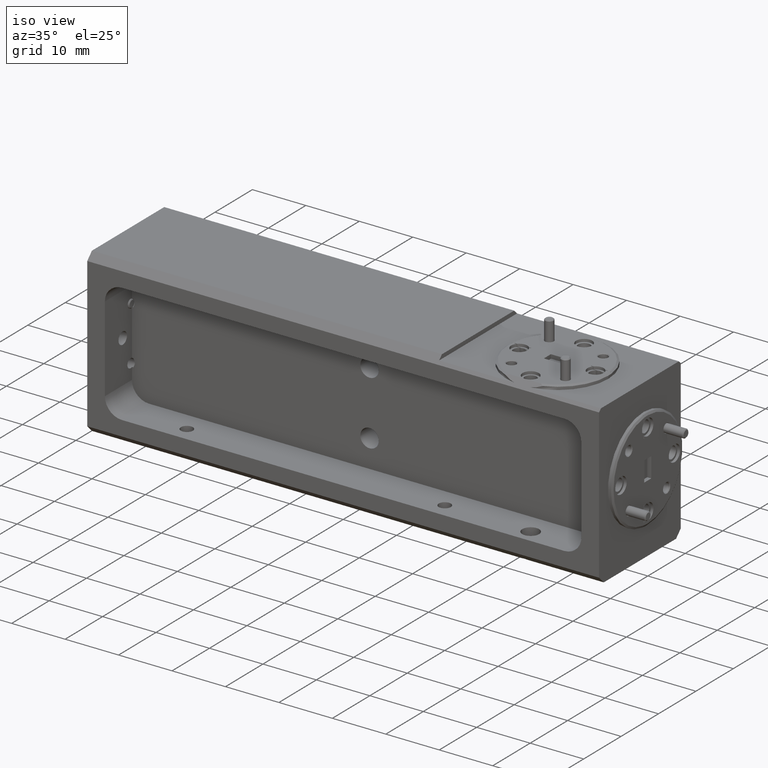
[diagram: clean part render]
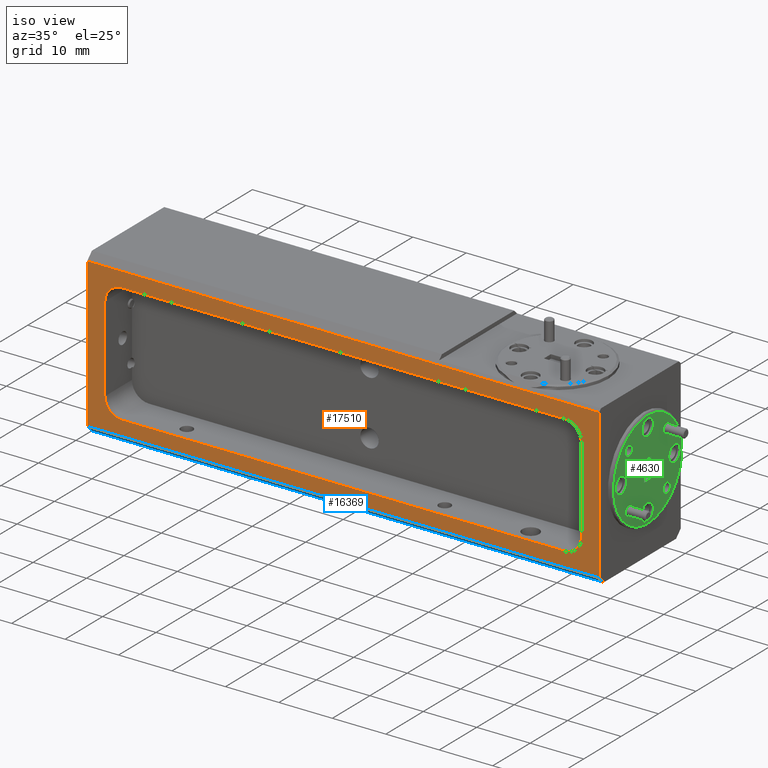
[diagram: same view with three faces highlighted in distinct colors, each labeled with its STEP entity id]
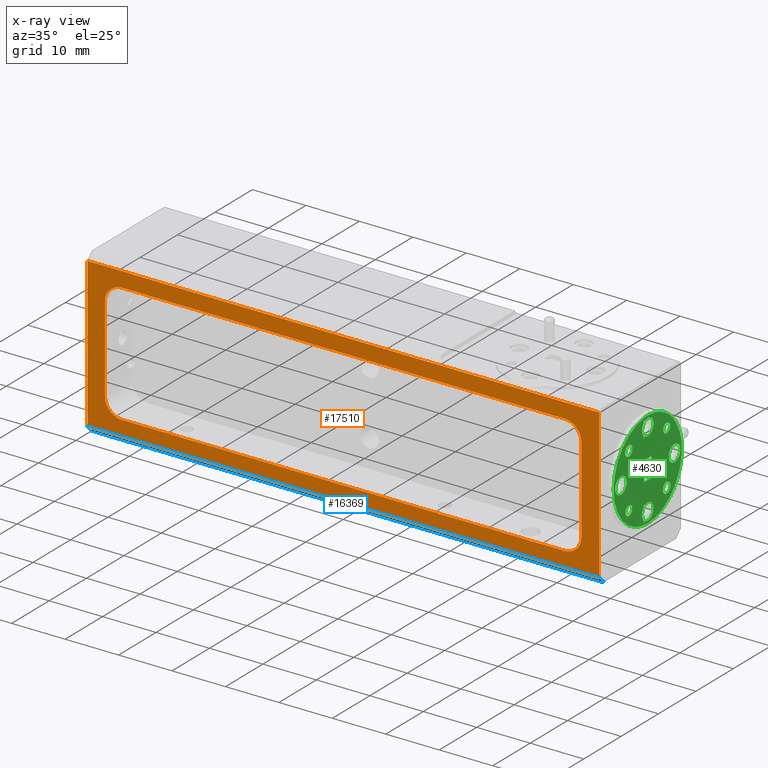
[diagram: x-ray of the same camera — body ghosted, the three highlighted faces saturated]
A machine part, iso view with three faces highlighted in distinct colors.
The next image is the same camera in x-ray (body ghosted, the three faces saturated) — at least one of them is partly hidden behind the body in this view.
Their STEP definitions:

[orange] entity #17510 — the highlighted planar face has unit normal (0, 1, 0).
#13 = CARTESIAN_POINT ( 'NONE',  ( -1.630000000000000338, 0.0000000000000000000, -0.3150000000000001688 ) ) ;
#117 = ORIENTED_EDGE ( 'NONE', *, *, #16021, .T. ) ;
#600 = DIRECTION ( 'NONE',  ( 0.0000000000000000000, -0.0000000000000000000, 1.000000000000000000 ) ) ;
#757 = CARTESIAN_POINT ( 'NONE',  ( 1.630000000000001004, 0.0000000000000000000, 0.3150000000000001688 ) ) ;
#827 = ORIENTED_EDGE ( 'NONE', *, *, #9134, .F. ) ;
#1209 = CIRCLE ( 'NONE', #12504, 0.1250000000000000000 ) ;
#1297 = DIRECTION ( 'NONE',  ( 0.0000000000000000000, 1.000000000000000000, 0.0000000000000000000 ) ) ;
#1350 = ORIENTED_EDGE ( 'NONE', *, *, #7781, .F. ) ;
#1412 = VERTEX_POINT ( 'NONE', #3759 ) ;
#1623 = CARTESIAN_POINT ( 'NONE',  ( 1.884999999999999343, 0.0000000000000000000, 0.5999999999999993117 ) ) ;
#1662 = EDGE_CURVE ( 'NONE', #1412, #18829, #1209, .T. ) ;
#1979 = ORIENTED_EDGE ( 'NONE', *, *, #8696, .T. ) ;
#2440 = CARTESIAN_POINT ( 'NONE',  ( -1.885000000000000453, 0.0000000000000000000, -0.5499999999999996003 ) ) ;
#2533 = CARTESIAN_POINT ( 'NONE',  ( 1.755000000000000782, 0.0000000000000000000, 0.3150000000000001132 ) ) ;
#3133 = LINE ( 'NONE', #1623, #12442 ) ;
#3376 = LINE ( 'NONE', #9351, #18757 ) ;
#3515 = FACE_BOUND ( 'NONE', #13949, .T. ) ;
#3617 = DIRECTION ( 'NONE',  ( 0.0000000000000000000, 1.000000000000000000, 0.0000000000000000000 ) ) ;
#3759 = CARTESIAN_POINT ( 'NONE',  ( 1.755000000000000782, 0.0000000000000000000, -0.3150000000000001688 ) ) ;
#4032 = VECTOR ( 'NONE', #5242, 39.37007874015748143 ) ;
#4731 = VERTEX_POINT ( 'NONE', #18368 ) ;
#5242 = DIRECTION ( 'NONE',  ( -1.000000000000000000, 0.0000000000000000000, 1.248233417470616654E-16 ) ) ;
#5535 = CARTESIAN_POINT ( 'NONE',  ( -1.885000000000000453, 0.0000000000000000000, -0.5999999999999998668 ) ) ;
#5592 = LINE ( 'NONE', #5897, #15548 ) ;
#5897 = CARTESIAN_POINT ( 'NONE',  ( 1.755000000000000782, 0.0000000000000000000, -0.4400000000000001688 ) ) ;
#6010 = EDGE_CURVE ( 'NONE', #8518, #6224, #18048, .T. ) ;
#6105 = EDGE_CURVE ( 'NONE', #8938, #13505, #16646, .T. ) ;
#6110 = ORIENTED_EDGE ( 'NONE', *, *, #9840, .F. ) ;
#6196 = ORIENTED_EDGE ( 'NONE', *, *, #7964, .T. ) ;
#6224 = VERTEX_POINT ( 'NONE', #11084 ) ;
#6254 = DIRECTION ( 'NONE',  ( 0.0000000000000000000, 1.000000000000000000, 0.0000000000000000000 ) ) ;
#6719 = ORIENTED_EDGE ( 'NONE', *, *, #6010, .F. ) ;
#6721 = AXIS2_PLACEMENT_3D ( 'NONE', #15850, #3617, #600 ) ;
#7188 = CARTESIAN_POINT ( 'NONE',  ( 1.755000000000000782, 0.0000000000000000000, 0.4400000000000001688 ) ) ;
#7256 = CARTESIAN_POINT ( 'NONE',  ( 1.630000000000001004, 0.0000000000000000000, -0.4400000000000001688 ) ) ;
#7457 = VERTEX_POINT ( 'NONE', #14024 ) ;
#7463 = DIRECTION ( 'NONE',  ( 0.0000000000000000000, 0.0000000000000000000, 1.000000000000000000 ) ) ;
#7781 = EDGE_CURVE ( 'NONE', #4731, #18829, #3376, .T. ) ;
#7947 = VERTEX_POINT ( 'NONE', #9749 ) ;
#7964 = EDGE_CURVE ( 'NONE', #10710, #17166, #11665, .T. ) ;
#7991 = LINE ( 'NONE', #11217, #4032 ) ;
#8091 = EDGE_CURVE ( 'NONE', #1412, #17166, #5592, .T. ) ;
#8197 = DIRECTION ( 'NONE',  ( 0.0000000000000000000, 0.0000000000000000000, 1.000000000000000000 ) ) ;
#8224 = CARTESIAN_POINT ( 'NONE',  ( -1.755000000000000560, -0.0000000000000000000, -0.4400000000000001688 ) ) ;
#8272 = AXIS2_PLACEMENT_3D ( 'NONE', #18158, #1297, #7463 ) ;
#8518 = VERTEX_POINT ( 'NONE', #2440 ) ;
#8527 = EDGE_LOOP ( 'NONE', ( #6719, #117, #6110, #1979 ) ) ;
#8696 = EDGE_CURVE ( 'NONE', #13230, #6224, #7991, .T. ) ;
#8938 = VERTEX_POINT ( 'NONE', #14608 ) ;
#9134 = EDGE_CURVE ( 'NONE', #8938, #7457, #15896, .T. ) ;
#9351 = CARTESIAN_POINT ( 'NONE',  ( 1.755000000000000782, 0.0000000000000000000, -0.4400000000000001688 ) ) ;
#9532 = ORIENTED_EDGE ( 'NONE', *, *, #9756, .F. ) ;
#9690 = FACE_OUTER_BOUND ( 'NONE', #8527, .T. ) ;
#9749 = CARTESIAN_POINT ( 'NONE',  ( 1.884999999999999343, 9.390727478220904197E-17, -0.5500000000000002665 ) ) ;
#9756 = EDGE_CURVE ( 'NONE', #10710, #13505, #14866, .T. ) ;
#9786 = PLANE ( 'NONE',  #6721 ) ;
#9840 = EDGE_CURVE ( 'NONE', #13230, #7947, #3133, .T. ) ;
#10710 = VERTEX_POINT ( 'NONE', #12287 ) ;
#10795 = DIRECTION ( 'NONE',  ( 1.000000000000000000, 0.0000000000000000000, -1.248233417470616654E-16 ) ) ;
#10852 = VECTOR ( 'NONE', #10795, 39.37007874015748143 ) ;
#11084 = CARTESIAN_POINT ( 'NONE',  ( -1.885000000000000453, 5.122214988120493535E-17, 0.5500000000000003775 ) ) ;
#11217 = CARTESIAN_POINT ( 'NONE',  ( 6.865283796088393324E-17, 0.0000000000000000000, 0.5500000000000000444 ) ) ;
#11556 = DIRECTION ( 'NONE',  ( 0.0000000000000000000, 1.000000000000000000, 0.0000000000000000000 ) ) ;
#11664 = DIRECTION ( 'NONE',  ( 0.0000000000000000000, 0.0000000000000000000, 1.000000000000000000 ) ) ;
#11665 = CIRCLE ( 'NONE', #14252, 0.1250000000000000278 ) ;
#12224 = DIRECTION ( 'NONE',  ( 0.0000000000000000000, 0.0000000000000000000, 1.000000000000000000 ) ) ;
#12287 = CARTESIAN_POINT ( 'NONE',  ( 1.630000000000001004, 0.0000000000000000000, 0.4400000000000001688 ) ) ;
#12442 = VECTOR ( 'NONE', #14253, 39.37007874015748143 ) ;
#12453 = CARTESIAN_POINT ( 'NONE',  ( 1.630000000000001004, 0.0000000000000000000, -0.3150000000000001688 ) ) ;
#12504 = AXIS2_PLACEMENT_3D ( 'NONE', #12453, #17191, #8197 ) ;
#12688 = DIRECTION ( 'NONE',  ( 0.0000000000000000000, 0.0000000000000000000, 1.000000000000000000 ) ) ;
#13230 = VERTEX_POINT ( 'NONE', #17338 ) ;
#13329 = DIRECTION ( 'NONE',  ( 0.0000000000000000000, 0.0000000000000000000, 1.000000000000000000 ) ) ;
#13359 = DIRECTION ( 'NONE',  ( -1.000000000000000000, 0.0000000000000000000, 0.0000000000000000000 ) ) ;
#13505 = VERTEX_POINT ( 'NONE', #18337 ) ;
#13747 = VECTOR ( 'NONE', #14296, 39.37007874015748143 ) ;
#13949 = EDGE_LOOP ( 'NONE', ( #1350, #16080, #827, #18871, #9532, #6196, #18781, #16518 ) ) ;
#14024 = CARTESIAN_POINT ( 'NONE',  ( -1.755000000000000560, 0.0000000000000000000, -0.3150000000000001688 ) ) ;
#14062 = VECTOR ( 'NONE', #13359, 39.37007874015748143 ) ;
#14252 = AXIS2_PLACEMENT_3D ( 'NONE', #757, #11556, #12688 ) ;
#14253 = DIRECTION ( 'NONE',  ( 0.0000000000000000000, 0.0000000000000000000, -1.000000000000000000 ) ) ;
#14296 = DIRECTION ( 'NONE',  ( -0.0000000000000000000, -0.0000000000000000000, -1.000000000000000000 ) ) ;
#14608 = CARTESIAN_POINT ( 'NONE',  ( -1.755000000000000560, 0.0000000000000000000, 0.3150000000000001132 ) ) ;
#14866 = LINE ( 'NONE', #7188, #14062 ) ;
#15339 = LINE ( 'NONE', #18369, #10852 ) ;
#15548 = VECTOR ( 'NONE', #11664, 39.37007874015748143 ) ;
#15850 = CARTESIAN_POINT ( 'NONE',  ( 0.0000000000000000000, 0.0000000000000000000, 0.0000000000000000000 ) ) ;
#15896 = LINE ( 'NONE', #8224, #13747 ) ;
#16021 = EDGE_CURVE ( 'NONE', #8518, #7947, #15339, .T. ) ;
#16080 = ORIENTED_EDGE ( 'NONE', *, *, #17355, .T. ) ;
#16518 = ORIENTED_EDGE ( 'NONE', *, *, #1662, .T. ) ;
#16646 = CIRCLE ( 'NONE', #8272, 0.1249999999999999584 ) ;
#17135 = VECTOR ( 'NONE', #13329, 39.37007874015748143 ) ;
#17166 = VERTEX_POINT ( 'NONE', #2533 ) ;
#17191 = DIRECTION ( 'NONE',  ( 0.0000000000000000000, 1.000000000000000000, 0.0000000000000000000 ) ) ;
#17338 = CARTESIAN_POINT ( 'NONE',  ( 1.884999999999999343, 8.537024980200822558E-18, 0.5499999999999998224 ) ) ;
#17355 = EDGE_CURVE ( 'NONE', #4731, #7457, #17999, .T. ) ;
#17510 = ADVANCED_FACE ( 'NONE', ( #3515, #9690 ), #9786, .F. ) ;
#17683 = AXIS2_PLACEMENT_3D ( 'NONE', #13, #6254, #12224 ) ;
#17999 = CIRCLE ( 'NONE', #17683, 0.1250000000000000000 ) ;
#18048 = LINE ( 'NONE', #5535, #17135 ) ;
#18158 = CARTESIAN_POINT ( 'NONE',  ( -1.630000000000000560, 0.0000000000000000000, 0.3150000000000001132 ) ) ;
#18337 = CARTESIAN_POINT ( 'NONE',  ( -1.630000000000000338, 0.0000000000000000000, 0.4400000000000001688 ) ) ;
#18368 = CARTESIAN_POINT ( 'NONE',  ( -1.630000000000000338, 0.0000000000000000000, -0.4400000000000001688 ) ) ;
#18369 = CARTESIAN_POINT ( 'NONE',  ( -6.865283796088388394E-17, 0.0000000000000000000, -0.5499999999999998224 ) ) ;
#18640 = DIRECTION ( 'NONE',  ( 1.000000000000000000, 0.0000000000000000000, -0.0000000000000000000 ) ) ;
#18757 = VECTOR ( 'NONE', #18640, 39.37007874015748143 ) ;
#18781 = ORIENTED_EDGE ( 'NONE', *, *, #8091, .F. ) ;
#18829 = VERTEX_POINT ( 'NONE', #7256 ) ;
#18871 = ORIENTED_EDGE ( 'NONE', *, *, #6105, .T. ) ;

[blue] entity #16369 — the highlighted planar face has unit normal (0, 0.7071, 0.7071).
#895 = CARTESIAN_POINT ( 'NONE',  ( 1.285108104665468653, 0.04999999999999977379, -0.6000000000000001998 ) ) ;
#1393 = EDGE_LOOP ( 'NONE', ( #1587, #17229, #12120, #19171, #6867, #14679 ) ) ;
#1425 = LINE ( 'NONE', #15358, #2116 ) ;
#1587 = ORIENTED_EDGE ( 'NONE', *, *, #11637, .F. ) ;
#1729 = DIRECTION ( 'NONE',  ( -1.000000000000000000, 0.0000000000000000000, 1.248233417470616654E-16 ) ) ;
#2116 = VECTOR ( 'NONE', #1729, 39.37007874015748143 ) ;
#2279 = VERTEX_POINT ( 'NONE', #18636 ) ;
#2440 = CARTESIAN_POINT ( 'NONE',  ( -1.885000000000000453, 0.0000000000000000000, -0.5499999999999996003 ) ) ;
#2511 = LINE ( 'NONE', #8666, #7111 ) ;
#4479 = LINE ( 'NONE', #12561, #8853 ) ;
#4588 = FACE_OUTER_BOUND ( 'NONE', #1393, .T. ) ;
#6867 = ORIENTED_EDGE ( 'NONE', *, *, #14011, .T. ) ;
#7111 = VECTOR ( 'NONE', #7159, 39.37007874015748143 ) ;
#7159 = DIRECTION ( 'NONE',  ( -0.0000000000000000000, -0.7071067811865443531, 0.7071067811865506814 ) ) ;
#7947 = VERTEX_POINT ( 'NONE', #9749 ) ;
#7951 = CARTESIAN_POINT ( 'NONE',  ( -1.885000000000000453, 0.04999999999999974604, -0.5999999999999998668 ) ) ;
#8142 = DIRECTION ( 'NONE',  ( -1.000000000000000000, 0.0000000000000000000, 1.248233417470616654E-16 ) ) ;
#8257 = CARTESIAN_POINT ( 'NONE',  ( 1.311868748388995476, 0.04562776243093956408, -0.5956277624309399554 ) ) ;
#8518 = VERTEX_POINT ( 'NONE', #2440 ) ;
#8592 = EDGE_CURVE ( 'NONE', #8810, #2279, #1425, .T. ) ;
#8666 = CARTESIAN_POINT ( 'NONE',  ( 1.884999999999999343, 0.04999999999999973910, -0.6000000000000001998 ) ) ;
#8810 = VERTEX_POINT ( 'NONE', #17271 ) ;
#8853 = VECTOR ( 'NONE', #9219, 39.37007874015748143 ) ;
#9219 = DIRECTION ( 'NONE',  ( -0.0000000000000000000, 0.7071067811865443531, -0.7071067811865506814 ) ) ;
#9749 = CARTESIAN_POINT ( 'NONE',  ( 1.884999999999999343, 9.390727478220904197E-17, -0.5500000000000002665 ) ) ;
#10656 = VECTOR ( 'NONE', #8142, 39.37007874015748143 ) ;
#10795 = DIRECTION ( 'NONE',  ( 1.000000000000000000, 0.0000000000000000000, -1.248233417470616654E-16 ) ) ;
#10852 = VECTOR ( 'NONE', #10795, 39.37007874015748143 ) ;
#11161 = LINE ( 'NONE', #19964, #10656 ) ;
#11193 = CARTESIAN_POINT ( 'NONE',  ( 1.298131251611004400, 0.04562776243093956408, -0.5956277624309399554 ) ) ;
#11637 = EDGE_CURVE ( 'NONE', #2279, #18709, #16802, .T. ) ;
#12120 = ORIENTED_EDGE ( 'NONE', *, *, #13040, .T. ) ;
#12466 = DIRECTION ( 'NONE',  ( -1.000000000000000000, 0.0000000000000000000, 1.248233417470616654E-16 ) ) ;
#12561 = CARTESIAN_POINT ( 'NONE',  ( -1.885000000000000453, 0.04999999999999998196, -0.5999999999999999778 ) ) ;
#12672 = CARTESIAN_POINT ( 'NONE',  ( 1.914999999999999369, 0.04999999999999973910, -0.6000000000000001998 ) ) ;
#13040 = EDGE_CURVE ( 'NONE', #8810, #7947, #2511, .T. ) ;
#14011 = EDGE_CURVE ( 'NONE', #8518, #17737, #4479, .T. ) ;
#14679 = ORIENTED_EDGE ( 'NONE', *, *, #14801, .F. ) ;
#14801 = EDGE_CURVE ( 'NONE', #18709, #17737, #11161, .T. ) ;
#15339 = LINE ( 'NONE', #18369, #10852 ) ;
#15358 = CARTESIAN_POINT ( 'NONE',  ( 1.914999999999999369, 0.04999999999999973910, -0.6000000000000001998 ) ) ;
#15928 = CARTESIAN_POINT ( 'NONE',  ( 1.324891895334531222, 0.04999999999999973910, -0.6000000000000001998 ) ) ;
#16021 = EDGE_CURVE ( 'NONE', #8518, #7947, #15339, .T. ) ;
#16369 = ADVANCED_FACE ( 'NONE', ( #4588 ), #18721, .F. ) ;
#16802 =( BOUNDED_CURVE ( )  B_SPLINE_CURVE ( 3, ( #15928, #8257, #11193, #17349 ),
 .UNSPECIFIED., .F., .F. ) 
 B_SPLINE_CURVE_WITH_KNOTS ( ( 4, 4 ),
 ( 2.817688277784851092, 3.465497029394735140 ),
 .UNSPECIFIED. ) 
 CURVE ( )  GEOMETRIC_REPRESENTATION_ITEM ( )  RATIONAL_B_SPLINE_CURVE ( ( 1.000000000000000000, 0.9653333333333378175, 0.9653333333333378175, 1.000000000000000000 ) ) 
 REPRESENTATION_ITEM ( '' )  );
#17229 = ORIENTED_EDGE ( 'NONE', *, *, #8592, .F. ) ;
#17271 = CARTESIAN_POINT ( 'NONE',  ( 1.884999999999999343, 0.05000000000000013461, -0.6000000000000005329 ) ) ;
#17308 = AXIS2_PLACEMENT_3D ( 'NONE', #12672, #18823, #12466 ) ;
#17349 = CARTESIAN_POINT ( 'NONE',  ( 1.285108104665468653, 0.04999999999999977379, -0.6000000000000001998 ) ) ;
#17737 = VERTEX_POINT ( 'NONE', #7951 ) ;
#18369 = CARTESIAN_POINT ( 'NONE',  ( -6.865283796088388394E-17, 0.0000000000000000000, -0.5499999999999998224 ) ) ;
#18636 = CARTESIAN_POINT ( 'NONE',  ( 1.324891895334531222, 0.04999999999999973910, -0.6000000000000001998 ) ) ;
#18709 = VERTEX_POINT ( 'NONE', #895 ) ;
#18721 = PLANE ( 'NONE',  #17308 ) ;
#18823 = DIRECTION ( 'NONE',  ( 8.826343139971278551E-17, 0.7071067811865506814, 0.7071067811865443531 ) ) ;
#19171 = ORIENTED_EDGE ( 'NONE', *, *, #16021, .F. ) ;
#19964 = CARTESIAN_POINT ( 'NONE',  ( 1.914999999999999369, 0.04999999999999973910, -0.6000000000000001998 ) ) ;

[green] entity #4630 — the highlighted planar face has unit normal (-1, 0, 0).
#31 = ORIENTED_EDGE ( 'NONE', *, *, #5197, .F. ) ;
#39 = VERTEX_POINT ( 'NONE', #3777 ) ;
#63 = EDGE_CURVE ( 'NONE', #14581, #17776, #1347, .T. ) ;
#123 = ORIENTED_EDGE ( 'NONE', *, *, #13187, .F. ) ;
#139 = CARTESIAN_POINT ( 'NONE',  ( 1.914999999999999369, 0.4325000000000001066, -0.07400000000000001021 ) ) ;
#170 = LINE ( 'NONE', #12595, #4122 ) ;
#205 = ORIENTED_EDGE ( 'NONE', *, *, #15525, .T. ) ;
#278 = EDGE_CURVE ( 'NONE', #14092, #14114, #1659, .T. ) ;
#340 = AXIS2_PLACEMENT_3D ( 'NONE', #10606, #7569, #6044 ) ;
#358 = DIRECTION ( 'NONE',  ( 0.0000000000000000000, 0.0000000000000000000, -1.000000000000000000 ) ) ;
#376 = VERTEX_POINT ( 'NONE', #6589 ) ;
#520 = CARTESIAN_POINT ( 'NONE',  ( 1.914999999999999369, 0.4325000000000000511, -0.2340165372855219639 ) ) ;
#613 = CARTESIAN_POINT ( 'NONE',  ( 1.914999999999999369, 0.4274999999999999911, 0.5999999999999996447 ) ) ;
#623 = CARTESIAN_POINT ( 'NONE',  ( 1.915000000000000258, 0.4274999999999999911, -0.2212500000000001688 ) ) ;
#625 = CIRCLE ( 'NONE', #11919, 0.05999999999999997696 ) ;
#643 = ORIENTED_EDGE ( 'NONE', *, *, #13526, .F. ) ;
#727 = LINE ( 'NONE', #10212, #17454 ) ;
#730 = CARTESIAN_POINT ( 'NONE',  ( 1.914999999999999369, 0.4325000000000000511, 0.3580935631926372431 ) ) ;
#764 = ORIENTED_EDGE ( 'NONE', *, *, #19812, .F. ) ;
#767 = CARTESIAN_POINT ( 'NONE',  ( 1.914999999999999369, 0.4325000000000000511, 0.3412500000000001643 ) ) ;
#774 = CARTESIAN_POINT ( 'NONE',  ( 1.914999999999999369, 0.2706262177912836520, 0.1988737822087165430 ) ) ;
#799 = DIRECTION ( 'NONE',  ( -1.000000000000000000, 0.0000000000000000000, 0.0000000000000000000 ) ) ;
#866 = LINE ( 'NONE', #19360, #3564 ) ;
#896 = AXIS2_PLACEMENT_3D ( 'NONE', #8135, #9650, #358 ) ;
#909 = VERTEX_POINT ( 'NONE', #1319 ) ;
#974 = VERTEX_POINT ( 'NONE', #13844 ) ;
#1160 = CARTESIAN_POINT ( 'NONE',  ( 1.914999999999999369, 0.4274999999999999911, 0.2384014294287430946 ) ) ;
#1175 = DIRECTION ( 'NONE',  ( -0.0000000000000000000, 1.000000000000000000, -0.0000000000000000000 ) ) ;
#1187 = VERTEX_POINT ( 'NONE', #1160 ) ;
#1188 = CIRCLE ( 'NONE', #2804, 0.03474999999999994760 ) ;
#1280 = CARTESIAN_POINT ( 'NONE',  ( 1.914999999999999369, 0.5065000000000000613, -0.07400000000000001021 ) ) ;
#1307 = EDGE_CURVE ( 'NONE', #11933, #11652, #18003, .T. ) ;
#1319 = CARTESIAN_POINT ( 'NONE',  ( 1.914999999999999369, 0.4274999999999999911, 0.3575416059705489591 ) ) ;
#1347 = CIRCLE ( 'NONE', #3912, 0.03475000000000001699 ) ;
#1470 = DIRECTION ( 'NONE',  ( 0.0000000000000000000, 0.0000000000000000000, -1.000000000000000000 ) ) ;
#1580 = VERTEX_POINT ( 'NONE', #3639 ) ;
#1604 = VERTEX_POINT ( 'NONE', #18907 ) ;
#1659 = CIRCLE ( 'NONE', #10690, 0.3599999999999988765 ) ;
#1775 = ORIENTED_EDGE ( 'NONE', *, *, #15599, .F. ) ;
#1778 = CIRCLE ( 'NONE', #4028, 0.05999999999999999778 ) ;
#1790 = ORIENTED_EDGE ( 'NONE', *, *, #2315, .F. ) ;
#1842 = VERTEX_POINT ( 'NONE', #18489 ) ;
#1861 = EDGE_CURVE ( 'NONE', #2503, #1604, #8402, .T. ) ;
#1872 = DIRECTION ( 'NONE',  ( 1.000000000000000000, -0.0000000000000000000, -0.0000000000000000000 ) ) ;
#2001 = LINE ( 'NONE', #15832, #5782 ) ;
#2028 = DIRECTION ( 'NONE',  ( 0.0000000000000000000, 0.0000000000000000000, -1.000000000000000000 ) ) ;
#2164 = EDGE_CURVE ( 'NONE', #1604, #39, #13262, .T. ) ;
#2172 = VECTOR ( 'NONE', #3736, 39.37007874015748143 ) ;
#2229 = EDGE_CURVE ( 'NONE', #14114, #12073, #866, .T. ) ;
#2236 = CARTESIAN_POINT ( 'NONE',  ( 1.914999999999999369, 0.7507500000000001394, 0.06000000000000005329 ) ) ;
#2272 = VERTEX_POINT ( 'NONE', #16824 ) ;
#2294 = LINE ( 'NONE', #9867, #16436 ) ;
#2297 = CARTESIAN_POINT ( 'NONE',  ( 1.914999999999999369, 0.4325000000000000511, 0.2212500000000003353 ) ) ;
#2315 = EDGE_CURVE ( 'NONE', #9734, #13354, #13703, .T. ) ;
#2363 = CARTESIAN_POINT ( 'NONE',  ( 1.914999999999999369, 0.4695000000000001394, 5.122214988120493535E-17 ) ) ;
#2387 = LINE ( 'NONE', #4305, #5628 ) ;
#2390 = EDGE_CURVE ( 'NONE', #17776, #14581, #8420, .T. ) ;
#2448 = ORIENTED_EDGE ( 'NONE', *, *, #6174, .F. ) ;
#2470 = EDGE_CURVE ( 'NONE', #8856, #5098, #12238, .T. ) ;
#2503 = VERTEX_POINT ( 'NONE', #15800 ) ;
#2516 = ORIENTED_EDGE ( 'NONE', *, *, #18898, .F. ) ;
#2580 = CARTESIAN_POINT ( 'NONE',  ( 1.914999999999999369, 0.4695000000000001394, 0.2812500000000001110 ) ) ;
#2638 = DIRECTION ( 'NONE',  ( 1.000000000000000000, -0.0000000000000000000, -0.0000000000000000000 ) ) ;
#2684 = DIRECTION ( 'NONE',  ( 1.000000000000000000, 0.0000000000000000000, 0.0000000000000000000 ) ) ;
#2774 = CIRCLE ( 'NONE', #8904, 0.03850000000000001338 ) ;
#2784 = CARTESIAN_POINT ( 'NONE',  ( 1.914999999999999369, 0.4695000000000000839, -0.2812500000000000555 ) ) ;
#2785 = CARTESIAN_POINT ( 'NONE',  ( 1.914999999999999369, 0.4695000000000001394, 5.122214988120493535E-17 ) ) ;
#2803 = EDGE_LOOP ( 'NONE', ( #6225, #7601, #7399, #8816 ) ) ;
#2804 = AXIS2_PLACEMENT_3D ( 'NONE', #17544, #13012, #17640 ) ;
#2884 = CARTESIAN_POINT ( 'NONE',  ( 1.914999999999999369, 0.4274999999999999911, 0.5999999999999996447 ) ) ;
#2991 = CARTESIAN_POINT ( 'NONE',  ( 1.915000000000000258, 0.4274999999999999911, -0.3412499999999999978 ) ) ;
#2999 = ORIENTED_EDGE ( 'NONE', *, *, #14455, .F. ) ;
#3042 = DIRECTION ( 'NONE',  ( 0.0000000000000000000, 0.0000000000000000000, -1.000000000000000000 ) ) ;
#3061 = VERTEX_POINT ( 'NONE', #18586 ) ;
#3103 = LINE ( 'NONE', #7658, #17935 ) ;
#3105 = CARTESIAN_POINT ( 'NONE',  ( 1.914999999999999369, 0.7507500000000001394, 5.122214988120493535E-17 ) ) ;
#3117 = VERTEX_POINT ( 'NONE', #9192 ) ;
#3247 = AXIS2_PLACEMENT_3D ( 'NONE', #2784, #5711, #5816 ) ;
#3399 = EDGE_CURVE ( 'NONE', #2503, #13354, #7259, .T. ) ;
#3480 = CARTESIAN_POINT ( 'NONE',  ( 1.914999999999999369, 0.4325000000000000511, 0.3570000000000012608 ) ) ;
#3536 = VECTOR ( 'NONE', #15549, 39.37007874015748143 ) ;
#3564 = VECTOR ( 'NONE', #5510, 39.37007874015748143 ) ;
#3572 = CARTESIAN_POINT ( 'NONE',  ( 1.914999999999999369, 0.2706262177912836520, -0.1988737822087165430 ) ) ;
#3574 = ORIENTED_EDGE ( 'NONE', *, *, #278, .T. ) ;
#3639 = CARTESIAN_POINT ( 'NONE',  ( 1.914999999999999369, 0.4325000000000000511, 0.3284834627144782027 ) ) ;
#3707 = VERTEX_POINT ( 'NONE', #6537 ) ;
#3712 = CARTESIAN_POINT ( 'NONE',  ( 1.914999999999999369, 0.1882500000000000562, 5.122214988120493535E-17 ) ) ;
#3736 = DIRECTION ( 'NONE',  ( 0.0000000000000000000, 0.0000000000000000000, -1.000000000000000000 ) ) ;
#3777 = CARTESIAN_POINT ( 'NONE',  ( 1.914999999999999369, 0.4695000000000000839, -0.2212500000000000577 ) ) ;
#3780 = EDGE_CURVE ( 'NONE', #3117, #6338, #2294, .T. ) ;
#3781 = ORIENTED_EDGE ( 'NONE', *, *, #8102, .F. ) ;
#3787 = DIRECTION ( 'NONE',  ( 1.000000000000000000, 0.0000000000000000000, 0.0000000000000000000 ) ) ;
#3803 = ORIENTED_EDGE ( 'NONE', *, *, #5676, .T. ) ;
#3805 = ORIENTED_EDGE ( 'NONE', *, *, #8098, .F. ) ;
#3821 = CARTESIAN_POINT ( 'NONE',  ( 1.914999999999999369, 0.4695000000000001394, 0.2812500000000001110 ) ) ;
#3904 = CARTESIAN_POINT ( 'NONE',  ( 1.914999999999999369, 0.4695000000000001394, 0.3412500000000001643 ) ) ;
#3912 = AXIS2_PLACEMENT_3D ( 'NONE', #6914, #11673, #10358 ) ;
#3980 = VERTEX_POINT ( 'NONE', #12565 ) ;
#4028 = AXIS2_PLACEMENT_3D ( 'NONE', #3105, #5012, #10990 ) ;
#4046 = CARTESIAN_POINT ( 'NONE',  ( 1.914999999999999369, 0.4325000000000000511, 0.5999999999999996447 ) ) ;
#4122 = VECTOR ( 'NONE', #19866, 39.37007874015748143 ) ;
#4125 = FACE_BOUND ( 'NONE', #17207, .T. ) ;
#4173 = CARTESIAN_POINT ( 'NONE',  ( 1.914999999999999369, 0.4274999999999999911, 0.5999999999999996447 ) ) ;
#4193 = EDGE_CURVE ( 'NONE', #3980, #5001, #15069, .T. ) ;
#4292 = ORIENTED_EDGE ( 'NONE', *, *, #13552, .T. ) ;
#4305 = CARTESIAN_POINT ( 'NONE',  ( 1.915000000000000258, 0.4274999999999999911, -0.3570000000000003171 ) ) ;
#4449 = CARTESIAN_POINT ( 'NONE',  ( 1.914999999999999369, 0.4695000000000000839, -0.2812500000000000555 ) ) ;
#4538 = EDGE_LOOP ( 'NONE', ( #18449, #12144 ) ) ;
#4630 = ADVANCED_FACE ( 'NONE', ( #13341, #19495, #8782, #16158, #16453, #5641, #8484, #8576, #7067, #4125 ), #11716, .F. ) ;
#4709 = EDGE_CURVE ( 'NONE', #1842, #974, #9043, .T. ) ;
#4876 = EDGE_CURVE ( 'NONE', #10588, #10364, #9385, .T. ) ;
#4902 = DIRECTION ( 'NONE',  ( 0.0000000000000000000, 0.0000000000000000000, -1.000000000000000000 ) ) ;
#4915 = EDGE_LOOP ( 'NONE', ( #13278, #15231, #4292, #3803, #3574, #16520, #3805, #8423, #15820, #3781 ) ) ;
#4950 = CARTESIAN_POINT ( 'NONE',  ( 1.914999999999999369, 0.6683737822087166824, 0.1641237822087165954 ) ) ;
#5001 = VERTEX_POINT ( 'NONE', #7045 ) ;
#5012 = DIRECTION ( 'NONE',  ( 1.000000000000000000, 0.0000000000000000000, 0.0000000000000000000 ) ) ;
#5016 = DIRECTION ( 'NONE',  ( 0.0000000000000000000, 0.0000000000000000000, -1.000000000000000000 ) ) ;
#5098 = VERTEX_POINT ( 'NONE', #3904 ) ;
#5197 = EDGE_CURVE ( 'NONE', #376, #1187, #5794, .T. ) ;
#5330 = CARTESIAN_POINT ( 'NONE',  ( 1.914999999999999369, 0.4325000000000000511, 0.5999999999999996447 ) ) ;
#5405 = CARTESIAN_POINT ( 'NONE',  ( 1.914999999999999369, 0.4325000000000000511, -0.3412499999999997202 ) ) ;
#5408 = LINE ( 'NONE', #14712, #18745 ) ;
#5510 = DIRECTION ( 'NONE',  ( 0.0000000000000000000, 0.0000000000000000000, -1.000000000000000000 ) ) ;
#5583 = EDGE_LOOP ( 'NONE', ( #1775, #12443 ) ) ;
#5586 = AXIS2_PLACEMENT_3D ( 'NONE', #3821, #17474, #9992 ) ;
#5628 = VECTOR ( 'NONE', #1175, 39.37007874015748143 ) ;
#5641 = FACE_BOUND ( 'NONE', #8985, .T. ) ;
#5654 = CARTESIAN_POINT ( 'NONE',  ( 1.914999999999999369, 0.4695000000000001394, 5.122214988120493535E-17 ) ) ;
#5676 = EDGE_CURVE ( 'NONE', #8419, #14092, #9711, .T. ) ;
#5705 = ORIENTED_EDGE ( 'NONE', *, *, #2470, .F. ) ;
#5711 = DIRECTION ( 'NONE',  ( 1.000000000000000000, 0.0000000000000000000, 0.0000000000000000000 ) ) ;
#5782 = VECTOR ( 'NONE', #6069, 39.37007874015748143 ) ;
#5793 = DIRECTION ( 'NONE',  ( 0.0000000000000000000, 0.0000000000000000000, -1.000000000000000000 ) ) ;
#5794 = CIRCLE ( 'NONE', #12580, 0.06000000000000001166 ) ;
#5816 = DIRECTION ( 'NONE',  ( 0.0000000000000000000, 0.0000000000000000000, -1.000000000000000000 ) ) ;
#5840 = VECTOR ( 'NONE', #18336, 39.37007874015748143 ) ;
#5971 = VECTOR ( 'NONE', #10372, 39.37007874015748143 ) ;
#5997 = CARTESIAN_POINT ( 'NONE',  ( 1.914999999999999369, 0.4274999999999999911, -0.2384014294287430669 ) ) ;
#6044 = DIRECTION ( 'NONE',  ( 0.0000000000000000000, 0.0000000000000000000, -1.000000000000000000 ) ) ;
#6069 = DIRECTION ( 'NONE',  ( 0.0000000000000000000, 0.0000000000000000000, -1.000000000000000000 ) ) ;
#6104 = VERTEX_POINT ( 'NONE', #12012 ) ;
#6158 = AXIS2_PLACEMENT_3D ( 'NONE', #5654, #2638, #7277 ) ;
#6164 = DIRECTION ( 'NONE',  ( 0.0000000000000000000, 0.0000000000000000000, -1.000000000000000000 ) ) ;
#6174 = EDGE_CURVE ( 'NONE', #1187, #11933, #3103, .T. ) ;
#6195 = EDGE_CURVE ( 'NONE', #18253, #15099, #18595, .T. ) ;
#6225 = ORIENTED_EDGE ( 'NONE', *, *, #18744, .F. ) ;
#6327 = CARTESIAN_POINT ( 'NONE',  ( 1.914999999999999369, 0.2706262177912836520, 0.1988737822087165430 ) ) ;
#6338 = VERTEX_POINT ( 'NONE', #767 ) ;
#6374 = EDGE_CURVE ( 'NONE', #3707, #8856, #8585, .T. ) ;
#6436 = DIRECTION ( 'NONE',  ( 1.000000000000000000, -0.0000000000000000000, -0.0000000000000000000 ) ) ;
#6537 = CARTESIAN_POINT ( 'NONE',  ( 1.914999999999999369, 0.4325000000000000511, 0.2340165372855220194 ) ) ;
#6589 = CARTESIAN_POINT ( 'NONE',  ( 1.914999999999999369, 0.4274999999999999911, 0.3240985705712571274 ) ) ;
#6646 = AXIS2_PLACEMENT_3D ( 'NONE', #17628, #3787, #15915 ) ;
#6679 = CARTESIAN_POINT ( 'NONE',  ( 1.914999999999999369, 0.6683737822087166824, -0.2373737822087165494 ) ) ;
#6781 = AXIS2_PLACEMENT_3D ( 'NONE', #4449, #7581, #6164 ) ;
#6822 = VECTOR ( 'NONE', #5793, 39.37007874015748143 ) ;
#6846 = ORIENTED_EDGE ( 'NONE', *, *, #14467, .F. ) ;
#6872 = EDGE_CURVE ( 'NONE', #909, #15794, #9265, .T. ) ;
#6906 = VERTEX_POINT ( 'NONE', #139 ) ;
#6914 = CARTESIAN_POINT ( 'NONE',  ( 1.914999999999999369, 0.2706262177912836520, -0.1988737822087165430 ) ) ;
#6928 = CARTESIAN_POINT ( 'NONE',  ( 1.914999999999999369, 0.2706262177912836520, -0.1641237822087165399 ) ) ;
#6959 = DIRECTION ( 'NONE',  ( 0.0000000000000000000, 0.0000000000000000000, 1.000000000000000000 ) ) ;
#7045 = CARTESIAN_POINT ( 'NONE',  ( 1.914999999999999369, 0.4325000000000000511, -0.3580935631926368545 ) ) ;
#7067 = FACE_BOUND ( 'NONE', #8039, .T. ) ;
#7090 = EDGE_CURVE ( 'NONE', #10484, #6906, #11337, .T. ) ;
#7113 = DIRECTION ( 'NONE',  ( -0.0000000000000000000, 1.000000000000000000, -0.0000000000000000000 ) ) ;
#7205 = EDGE_CURVE ( 'NONE', #10686, #9569, #14764, .T. ) ;
#7259 = LINE ( 'NONE', #5330, #15428 ) ;
#7277 = DIRECTION ( 'NONE',  ( 0.0000000000000000000, 0.0000000000000000000, 1.000000000000000000 ) ) ;
#7292 = EDGE_CURVE ( 'NONE', #3707, #11652, #727, .T. ) ;
#7352 = ORIENTED_EDGE ( 'NONE', *, *, #6374, .F. ) ;
#7399 = ORIENTED_EDGE ( 'NONE', *, *, #11857, .F. ) ;
#7418 = CARTESIAN_POINT ( 'NONE',  ( 1.914999999999999369, 0.7507500000000001394, -0.05999999999999994921 ) ) ;
#7451 = ORIENTED_EDGE ( 'NONE', *, *, #7763, .F. ) ;
#7507 = EDGE_CURVE ( 'NONE', #6338, #1580, #5408, .T. ) ;
#7531 = ORIENTED_EDGE ( 'NONE', *, *, #7507, .T. ) ;
#7569 = DIRECTION ( 'NONE',  ( 1.000000000000000000, 0.0000000000000000000, 0.0000000000000000000 ) ) ;
#7581 = DIRECTION ( 'NONE',  ( 1.000000000000000000, 0.0000000000000000000, 0.0000000000000000000 ) ) ;
#7601 = ORIENTED_EDGE ( 'NONE', *, *, #7090, .F. ) ;
#7658 = CARTESIAN_POINT ( 'NONE',  ( 1.914999999999999369, 0.4274999999999999911, 0.5999999999999996447 ) ) ;
#7682 = AXIS2_PLACEMENT_3D ( 'NONE', #6327, #19879, #12609 ) ;
#7763 = EDGE_CURVE ( 'NONE', #11781, #12390, #16829, .T. ) ;
#7966 = CARTESIAN_POINT ( 'NONE',  ( 1.914999999999999369, 0.5065000000000000613, -0.07400000000000001021 ) ) ;
#7995 = DIRECTION ( 'NONE',  ( 1.000000000000000000, -0.0000000000000000000, -0.0000000000000000000 ) ) ;
#8039 = EDGE_LOOP ( 'NONE', ( #2516, #13773 ) ) ;
#8060 = CARTESIAN_POINT ( 'NONE',  ( 1.914999999999999369, 0.5065000000000000613, 0.07399999999999998246 ) ) ;
#8098 = EDGE_CURVE ( 'NONE', #6104, #12073, #12064, .T. ) ;
#8102 = EDGE_CURVE ( 'NONE', #19220, #15794, #10349, .T. ) ;
#8135 = CARTESIAN_POINT ( 'NONE',  ( 1.914999999999999369, 0.4695000000000001394, 0.2812500000000001110 ) ) ;
#8181 = DIRECTION ( 'NONE',  ( 0.0000000000000000000, 1.000000000000000000, 0.0000000000000000000 ) ) ;
#8200 = CARTESIAN_POINT ( 'NONE',  ( 1.915000000000000258, 0.4325000000000000511, 0.5999999999999996447 ) ) ;
#8204 = CARTESIAN_POINT ( 'NONE',  ( 1.914999999999999369, 0.4695000000000000839, -0.2812500000000000555 ) ) ;
#8333 = EDGE_CURVE ( 'NONE', #12390, #15746, #15180, .T. ) ;
#8402 = CIRCLE ( 'NONE', #6781, 0.05999999999999997696 ) ;
#8419 = VERTEX_POINT ( 'NONE', #13156 ) ;
#8420 = CIRCLE ( 'NONE', #14868, 0.03475000000000001699 ) ;
#8423 = ORIENTED_EDGE ( 'NONE', *, *, #15638, .F. ) ;
#8484 = FACE_BOUND ( 'NONE', #2803, .T. ) ;
#8498 = LINE ( 'NONE', #623, #9415 ) ;
#8556 = ORIENTED_EDGE ( 'NONE', *, *, #4709, .F. ) ;
#8576 = FACE_BOUND ( 'NONE', #5583, .T. ) ;
#8585 = CIRCLE ( 'NONE', #6646, 0.06000000000000001166 ) ;
#8643 = LINE ( 'NONE', #2884, #5971 ) ;
#8652 = DIRECTION ( 'NONE',  ( -0.0000000000000000000, 1.000000000000000000, -0.0000000000000000000 ) ) ;
#8705 = VECTOR ( 'NONE', #10220, 39.37007874015748143 ) ;
#8782 = FACE_BOUND ( 'NONE', #9849, .T. ) ;
#8816 = ORIENTED_EDGE ( 'NONE', *, *, #4876, .F. ) ;
#8856 = VERTEX_POINT ( 'NONE', #14949 ) ;
#8904 = AXIS2_PLACEMENT_3D ( 'NONE', #9198, #7995, #3042 ) ;
#8971 = ORIENTED_EDGE ( 'NONE', *, *, #63, .F. ) ;
#8985 = EDGE_LOOP ( 'NONE', ( #14171, #8556 ) ) ;
#9043 = CIRCLE ( 'NONE', #340, 0.05999999999999999778 ) ;
#9192 = CARTESIAN_POINT ( 'NONE',  ( 1.915000000000000258, 0.4274999999999999911, 0.3412499999999999978 ) ) ;
#9198 = CARTESIAN_POINT ( 'NONE',  ( 1.914999999999999369, 0.6683737822087166824, -0.1988737822087165430 ) ) ;
#9201 = VERTEX_POINT ( 'NONE', #17609 ) ;
#9263 = VECTOR ( 'NONE', #17805, 39.37007874015748143 ) ;
#9265 = CIRCLE ( 'NONE', #17652, 0.3599999999999988765 ) ;
#9267 = DIRECTION ( 'NONE',  ( 1.000000000000000000, 0.0000000000000000000, 0.0000000000000000000 ) ) ;
#9368 = EDGE_LOOP ( 'NONE', ( #11233, #7531, #764, #5705, #7352, #15501, #10905, #2448, #31, #643 ) ) ;
#9385 = LINE ( 'NONE', #7966, #3536 ) ;
#9393 = ORIENTED_EDGE ( 'NONE', *, *, #2390, .F. ) ;
#9415 = VECTOR ( 'NONE', #14658, 39.37007874015748143 ) ;
#9492 = AXIS2_PLACEMENT_3D ( 'NONE', #2785, #14921, #16720 ) ;
#9505 = LINE ( 'NONE', #15268, #11970 ) ;
#9569 = VERTEX_POINT ( 'NONE', #6679 ) ;
#9650 = DIRECTION ( 'NONE',  ( 1.000000000000000000, 0.0000000000000000000, 0.0000000000000000000 ) ) ;
#9711 = CIRCLE ( 'NONE', #6158, 0.3599999999999988765 ) ;
#9725 = CARTESIAN_POINT ( 'NONE',  ( 1.914999999999999369, 0.4695000000000001394, 0.3599999999999989875 ) ) ;
#9734 = VERTEX_POINT ( 'NONE', #10524 ) ;
#9751 = CARTESIAN_POINT ( 'NONE',  ( 1.914999999999999369, 0.6683737822087166824, 0.2336237822087164906 ) ) ;
#9782 = VERTEX_POINT ( 'NONE', #4950 ) ;
#9849 = EDGE_LOOP ( 'NONE', ( #17762, #205, #6846, #14008, #16442, #10260, #1790, #2999, #12833, #7451 ) ) ;
#9867 = CARTESIAN_POINT ( 'NONE',  ( 1.915000000000000258, 0.4274999999999999911, 0.3412499999999999978 ) ) ;
#9887 = DIRECTION ( 'NONE',  ( 0.0000000000000000000, 0.0000000000000000000, -1.000000000000000000 ) ) ;
#9992 = DIRECTION ( 'NONE',  ( 0.0000000000000000000, 0.0000000000000000000, -1.000000000000000000 ) ) ;
#10212 = CARTESIAN_POINT ( 'NONE',  ( 1.914999999999999369, 0.4325000000000000511, 0.5999999999999996447 ) ) ;
#10220 = DIRECTION ( 'NONE',  ( 0.0000000000000000000, 0.0000000000000000000, -1.000000000000000000 ) ) ;
#10260 = ORIENTED_EDGE ( 'NONE', *, *, #3399, .T. ) ;
#10349 = LINE ( 'NONE', #4173, #6822 ) ;
#10358 = DIRECTION ( 'NONE',  ( 0.0000000000000000000, 0.0000000000000000000, -1.000000000000000000 ) ) ;
#10364 = VERTEX_POINT ( 'NONE', #8060 ) ;
#10372 = DIRECTION ( 'NONE',  ( 0.0000000000000000000, 0.0000000000000000000, -1.000000000000000000 ) ) ;
#10421 = CARTESIAN_POINT ( 'NONE',  ( 1.914999999999999369, 0.6683737822087166824, -0.1988737822087165430 ) ) ;
#10445 = EDGE_CURVE ( 'NONE', #3061, #2272, #11145, .T. ) ;
#10484 = VERTEX_POINT ( 'NONE', #18143 ) ;
#10513 = EDGE_CURVE ( 'NONE', #19220, #3980, #2387, .T. ) ;
#10524 = CARTESIAN_POINT ( 'NONE',  ( 1.914999999999999369, 0.4274999999999999911, -0.3412499999999997202 ) ) ;
#10588 = VERTEX_POINT ( 'NONE', #1280 ) ;
#10606 = CARTESIAN_POINT ( 'NONE',  ( 1.914999999999999369, 0.1882500000000000562, 5.122214988120493535E-17 ) ) ;
#10686 = VERTEX_POINT ( 'NONE', #10773 ) ;
#10690 = AXIS2_PLACEMENT_3D ( 'NONE', #15598, #11055, #15695 ) ;
#10773 = CARTESIAN_POINT ( 'NONE',  ( 1.914999999999999369, 0.6683737822087166824, -0.1603737822087165366 ) ) ;
#10778 = CIRCLE ( 'NONE', #9492, 0.3599999999999988765 ) ;
#10905 = ORIENTED_EDGE ( 'NONE', *, *, #1307, .F. ) ;
#10990 = DIRECTION ( 'NONE',  ( 0.0000000000000000000, 0.0000000000000000000, -1.000000000000000000 ) ) ;
#11055 = DIRECTION ( 'NONE',  ( 1.000000000000000000, -0.0000000000000000000, -0.0000000000000000000 ) ) ;
#11088 = DIRECTION ( 'NONE',  ( 0.0000000000000000000, 0.0000000000000000000, -1.000000000000000000 ) ) ;
#11145 = CIRCLE ( 'NONE', #11795, 0.03850000000000001338 ) ;
#11233 = ORIENTED_EDGE ( 'NONE', *, *, #3780, .T. ) ;
#11337 = LINE ( 'NONE', #8200, #2172 ) ;
#11624 = EDGE_CURVE ( 'NONE', #12075, #9782, #1188, .T. ) ;
#11652 = VERTEX_POINT ( 'NONE', #2297 ) ;
#11673 = DIRECTION ( 'NONE',  ( 1.000000000000000000, -0.0000000000000000000, -0.0000000000000000000 ) ) ;
#11716 = PLANE ( 'NONE',  #13250 ) ;
#11731 = DIRECTION ( 'NONE',  ( 1.000000000000000000, -0.0000000000000000000, -0.0000000000000000000 ) ) ;
#11781 = VERTEX_POINT ( 'NONE', #11894 ) ;
#11795 = AXIS2_PLACEMENT_3D ( 'NONE', #774, #19065, #12710 ) ;
#11857 = EDGE_CURVE ( 'NONE', #10364, #10484, #170, .T. ) ;
#11894 = CARTESIAN_POINT ( 'NONE',  ( 1.915000000000000258, 0.4274999999999999911, -0.2212500000000001688 ) ) ;
#11919 = AXIS2_PLACEMENT_3D ( 'NONE', #12709, #12340, #5016 ) ;
#11933 = VERTEX_POINT ( 'NONE', #18542 ) ;
#11952 = AXIS2_PLACEMENT_3D ( 'NONE', #8204, #19120, #15971 ) ;
#11970 = VECTOR ( 'NONE', #18592, 39.37007874015748143 ) ;
#12012 = CARTESIAN_POINT ( 'NONE',  ( 1.915000000000000258, 0.4274999999999999911, 0.3569999999999997620 ) ) ;
#12064 = LINE ( 'NONE', #18213, #18121 ) ;
#12073 = VERTEX_POINT ( 'NONE', #3480 ) ;
#12075 = VERTEX_POINT ( 'NONE', #9751 ) ;
#12144 = ORIENTED_EDGE ( 'NONE', *, *, #17718, .F. ) ;
#12238 = CIRCLE ( 'NONE', #896, 0.06000000000000001166 ) ;
#12340 = DIRECTION ( 'NONE',  ( 1.000000000000000000, 0.0000000000000000000, 0.0000000000000000000 ) ) ;
#12390 = VERTEX_POINT ( 'NONE', #5997 ) ;
#12443 = ORIENTED_EDGE ( 'NONE', *, *, #7205, .F. ) ;
#12565 = CARTESIAN_POINT ( 'NONE',  ( 1.914999999999999591, 0.4325000000000000511, -0.3570000000000004281 ) ) ;
#12580 = AXIS2_PLACEMENT_3D ( 'NONE', #2580, #2684, #19555 ) ;
#12595 = CARTESIAN_POINT ( 'NONE',  ( 1.914999999999999369, 0.4325000000000001066, 0.07399999999999998246 ) ) ;
#12609 = DIRECTION ( 'NONE',  ( 0.0000000000000000000, 0.0000000000000000000, -1.000000000000000000 ) ) ;
#12652 = CARTESIAN_POINT ( 'NONE',  ( 1.914999999999999369, 0.4274999999999999911, -0.3240985705712569609 ) ) ;
#12710 = DIRECTION ( 'NONE',  ( 0.0000000000000000000, 0.0000000000000000000, -1.000000000000000000 ) ) ;
#12709 = CARTESIAN_POINT ( 'NONE',  ( 1.914999999999999369, 0.4695000000000000839, -0.2812500000000000555 ) ) ;
#12826 = CIRCLE ( 'NONE', #7682, 0.03850000000000001338 ) ;
#12833 = ORIENTED_EDGE ( 'NONE', *, *, #8333, .F. ) ;
#13012 = DIRECTION ( 'NONE',  ( 1.000000000000000000, -0.0000000000000000000, -0.0000000000000000000 ) ) ;
#13045 = EDGE_CURVE ( 'NONE', #974, #1842, #18400, .T. ) ;
#13102 = DIRECTION ( 'NONE',  ( 0.0000000000000000000, 0.0000000000000000000, -1.000000000000000000 ) ) ;
#13156 = CARTESIAN_POINT ( 'NONE',  ( 1.914999999999999369, 0.4695000000000001950, -0.3599999999999988209 ) ) ;
#13180 = DIRECTION ( 'NONE',  ( 1.000000000000000000, -0.0000000000000000000, -0.0000000000000000000 ) ) ;
#13187 = EDGE_CURVE ( 'NONE', #15099, #18253, #1778, .T. ) ;
#13250 = AXIS2_PLACEMENT_3D ( 'NONE', #14644, #799, #6959 ) ;
#13262 = CIRCLE ( 'NONE', #3247, 0.05999999999999997696 ) ;
#13278 = ORIENTED_EDGE ( 'NONE', *, *, #10513, .T. ) ;
#13341 = FACE_BOUND ( 'NONE', #9368, .T. ) ;
#13354 = VERTEX_POINT ( 'NONE', #5405 ) ;
#13526 = EDGE_CURVE ( 'NONE', #3117, #376, #8643, .T. ) ;
#13552 = EDGE_CURVE ( 'NONE', #5001, #8419, #10778, .T. ) ;
#13703 = LINE ( 'NONE', #2991, #5840 ) ;
#13773 = ORIENTED_EDGE ( 'NONE', *, *, #11624, .F. ) ;
#13844 = CARTESIAN_POINT ( 'NONE',  ( 1.914999999999999369, 0.1882500000000000562, -0.05999999999999994921 ) ) ;
#13959 = CIRCLE ( 'NONE', #19108, 0.03474999999999994760 ) ;
#14008 = ORIENTED_EDGE ( 'NONE', *, *, #2164, .F. ) ;
#14092 = VERTEX_POINT ( 'NONE', #9725 ) ;
#14114 = VERTEX_POINT ( 'NONE', #730 ) ;
#14171 = ORIENTED_EDGE ( 'NONE', *, *, #13045, .F. ) ;
#14455 = EDGE_CURVE ( 'NONE', #15746, #9734, #2001, .T. ) ;
#14467 = EDGE_CURVE ( 'NONE', #39, #17058, #625, .T. ) ;
#14581 = VERTEX_POINT ( 'NONE', #6928 ) ;
#14636 = LINE ( 'NONE', #15944, #17478 ) ;
#14644 = CARTESIAN_POINT ( 'NONE',  ( 1.914999999999999369, 0.4274999999999999911, 0.5999999999999996447 ) ) ;
#14658 = DIRECTION ( 'NONE',  ( -0.0000000000000000000, 1.000000000000000000, -0.0000000000000000000 ) ) ;
#14712 = CARTESIAN_POINT ( 'NONE',  ( 1.914999999999999369, 0.4325000000000000511, 0.5999999999999996447 ) ) ;
#14719 = AXIS2_PLACEMENT_3D ( 'NONE', #17148, #9267, #15536 ) ;
#14764 = CIRCLE ( 'NONE', #15725, 0.03850000000000001338 ) ;
#14868 = AXIS2_PLACEMENT_3D ( 'NONE', #3572, #1872, #4902 ) ;
#14921 = DIRECTION ( 'NONE',  ( 1.000000000000000000, -0.0000000000000000000, -0.0000000000000000000 ) ) ;
#14949 = CARTESIAN_POINT ( 'NONE',  ( 1.914999999999999369, 0.4695000000000001394, 0.2212500000000000577 ) ) ;
#15069 = LINE ( 'NONE', #4046, #8705 ) ;
#15099 = VERTEX_POINT ( 'NONE', #7418 ) ;
#15180 = CIRCLE ( 'NONE', #11952, 0.05999999999999997696 ) ;
#15231 = ORIENTED_EDGE ( 'NONE', *, *, #4193, .T. ) ;
#15268 = CARTESIAN_POINT ( 'NONE',  ( 1.914999999999999369, 0.4325000000000000511, 0.5999999999999996447 ) ) ;
#15309 = CARTESIAN_POINT ( 'NONE',  ( 1.914999999999999369, 0.4274999999999999911, 0.5999999999999996447 ) ) ;
#15428 = VECTOR ( 'NONE', #19095, 39.37007874015748143 ) ;
#15501 = ORIENTED_EDGE ( 'NONE', *, *, #7292, .T. ) ;
#15525 = EDGE_CURVE ( 'NONE', #9201, #17058, #9505, .T. ) ;
#15536 = DIRECTION ( 'NONE',  ( 0.0000000000000000000, 0.0000000000000000000, -1.000000000000000000 ) ) ;
#15549 = DIRECTION ( 'NONE',  ( 0.0000000000000000000, -1.153652024351462561E-16, 1.000000000000000000 ) ) ;
#15591 = CIRCLE ( 'NONE', #5586, 0.06000000000000001166 ) ;
#15598 = CARTESIAN_POINT ( 'NONE',  ( 1.914999999999999369, 0.4695000000000001394, 5.122214988120493535E-17 ) ) ;
#15599 = EDGE_CURVE ( 'NONE', #9569, #10686, #2774, .T. ) ;
#15638 = EDGE_CURVE ( 'NONE', #909, #6104, #18803, .T. ) ;
#15695 = DIRECTION ( 'NONE',  ( 0.0000000000000000000, 0.0000000000000000000, 1.000000000000000000 ) ) ;
#15725 = AXIS2_PLACEMENT_3D ( 'NONE', #10421, #11731, #16570 ) ;
#15746 = VERTEX_POINT ( 'NONE', #12652 ) ;
#15794 = VERTEX_POINT ( 'NONE', #16652 ) ;
#15800 = CARTESIAN_POINT ( 'NONE',  ( 1.914999999999999369, 0.4325000000000000511, -0.3284834627144781471 ) ) ;
#15820 = ORIENTED_EDGE ( 'NONE', *, *, #6872, .T. ) ;
#15832 = CARTESIAN_POINT ( 'NONE',  ( 1.914999999999999369, 0.4274999999999999911, 0.5999999999999996447 ) ) ;
#15915 = DIRECTION ( 'NONE',  ( 0.0000000000000000000, 0.0000000000000000000, -1.000000000000000000 ) ) ;
#15944 = CARTESIAN_POINT ( 'NONE',  ( 1.914999999999999369, 0.4325000000000001066, -0.07400000000000001021 ) ) ;
#15971 = DIRECTION ( 'NONE',  ( 0.0000000000000000000, 0.0000000000000000000, -1.000000000000000000 ) ) ;
#16158 = FACE_BOUND ( 'NONE', #4538, .T. ) ;
#16296 = DIRECTION ( 'NONE',  ( 0.0000000000000000000, 0.0000000000000000000, 1.000000000000000000 ) ) ;
#16436 = VECTOR ( 'NONE', #8652, 39.37007874015748143 ) ;
#16442 = ORIENTED_EDGE ( 'NONE', *, *, #1861, .F. ) ;
#16453 = FACE_BOUND ( 'NONE', #19829, .T. ) ;
#16520 = ORIENTED_EDGE ( 'NONE', *, *, #2229, .T. ) ;
#16570 = DIRECTION ( 'NONE',  ( 0.0000000000000000000, 0.0000000000000000000, -1.000000000000000000 ) ) ;
#16652 = CARTESIAN_POINT ( 'NONE',  ( 1.914999999999999369, 0.4274999999999999911, -0.3575416059705485150 ) ) ;
#16720 = DIRECTION ( 'NONE',  ( 0.0000000000000000000, 0.0000000000000000000, 1.000000000000000000 ) ) ;
#16824 = CARTESIAN_POINT ( 'NONE',  ( 1.914999999999999369, 0.2706262177912836520, 0.2373737822087165494 ) ) ;
#16829 = LINE ( 'NONE', #15309, #17470 ) ;
#17042 = DIRECTION ( 'NONE',  ( 0.0000000000000000000, 0.0000000000000000000, -1.000000000000000000 ) ) ;
#17058 = VERTEX_POINT ( 'NONE', #520 ) ;
#17104 = AXIS2_PLACEMENT_3D ( 'NONE', #3712, #18986, #9887 ) ;
#17148 = CARTESIAN_POINT ( 'NONE',  ( 1.914999999999999369, 0.7507500000000001394, 5.122214988120493535E-17 ) ) ;
#17207 = EDGE_LOOP ( 'NONE', ( #123, #19154 ) ) ;
#17454 = VECTOR ( 'NONE', #19204, 39.37007874015748143 ) ;
#17470 = VECTOR ( 'NONE', #1470, 39.37007874015748143 ) ;
#17474 = DIRECTION ( 'NONE',  ( 1.000000000000000000, 0.0000000000000000000, 0.0000000000000000000 ) ) ;
#17478 = VECTOR ( 'NONE', #8181, 39.37007874015748143 ) ;
#17544 = CARTESIAN_POINT ( 'NONE',  ( 1.914999999999999369, 0.6683737822087166824, 0.1988737822087165430 ) ) ;
#17609 = CARTESIAN_POINT ( 'NONE',  ( 1.914999999999999369, 0.4325000000000000511, -0.2212499999999999190 ) ) ;
#17628 = CARTESIAN_POINT ( 'NONE',  ( 1.914999999999999369, 0.4695000000000001394, 0.2812500000000001110 ) ) ;
#17640 = DIRECTION ( 'NONE',  ( 0.0000000000000000000, 0.0000000000000000000, -1.000000000000000000 ) ) ;
#17652 = AXIS2_PLACEMENT_3D ( 'NONE', #2363, #13180, #16296 ) ;
#17718 = EDGE_CURVE ( 'NONE', #2272, #3061, #12826, .T. ) ;
#17762 = ORIENTED_EDGE ( 'NONE', *, *, #18346, .T. ) ;
#17776 = VERTEX_POINT ( 'NONE', #18661 ) ;
#17805 = DIRECTION ( 'NONE',  ( -0.0000000000000000000, 1.000000000000000000, -0.0000000000000000000 ) ) ;
#17935 = VECTOR ( 'NONE', #17042, 39.37007874015748143 ) ;
#18003 = LINE ( 'NONE', #19638, #9263 ) ;
#18121 = VECTOR ( 'NONE', #7113, 39.37007874015748143 ) ;
#18143 = CARTESIAN_POINT ( 'NONE',  ( 1.914999999999999369, 0.4325000000000001066, 0.07399999999999998246 ) ) ;
#18213 = CARTESIAN_POINT ( 'NONE',  ( 1.915000000000000258, 0.4274999999999999911, 0.3569999999999997620 ) ) ;
#18253 = VERTEX_POINT ( 'NONE', #2236 ) ;
#18336 = DIRECTION ( 'NONE',  ( -0.0000000000000000000, 1.000000000000000000, -0.0000000000000000000 ) ) ;
#18346 = EDGE_CURVE ( 'NONE', #11781, #9201, #8498, .T. ) ;
#18400 = CIRCLE ( 'NONE', #17104, 0.05999999999999999778 ) ;
#18449 = ORIENTED_EDGE ( 'NONE', *, *, #10445, .F. ) ;
#18489 = CARTESIAN_POINT ( 'NONE',  ( 1.914999999999999369, 0.1882500000000000562, 0.06000000000000005329 ) ) ;
#18542 = CARTESIAN_POINT ( 'NONE',  ( 1.915000000000000258, 0.4274999999999999911, 0.2212500000000001688 ) ) ;
#18586 = CARTESIAN_POINT ( 'NONE',  ( 1.914999999999999369, 0.2706262177912836520, 0.1603737822087165366 ) ) ;
#18592 = DIRECTION ( 'NONE',  ( 0.0000000000000000000, 0.0000000000000000000, -1.000000000000000000 ) ) ;
#18595 = CIRCLE ( 'NONE', #14719, 0.05999999999999999778 ) ;
#18661 = CARTESIAN_POINT ( 'NONE',  ( 1.914999999999999369, 0.2706262177912836520, -0.2336237822087165739 ) ) ;
#18665 = CARTESIAN_POINT ( 'NONE',  ( 1.914999999999999369, 0.6683737822087166824, 0.1988737822087165430 ) ) ;
#18744 = EDGE_CURVE ( 'NONE', #6906, #10588, #14636, .T. ) ;
#18745 = VECTOR ( 'NONE', #13102, 39.37007874015748143 ) ;
#18803 = LINE ( 'NONE', #613, #19869 ) ;
#18898 = EDGE_CURVE ( 'NONE', #9782, #12075, #13959, .T. ) ;
#18907 = CARTESIAN_POINT ( 'NONE',  ( 1.914999999999999369, 0.4695000000000000839, -0.3412499999999999978 ) ) ;
#18986 = DIRECTION ( 'NONE',  ( 1.000000000000000000, 0.0000000000000000000, 0.0000000000000000000 ) ) ;
#19065 = DIRECTION ( 'NONE',  ( 1.000000000000000000, -0.0000000000000000000, -0.0000000000000000000 ) ) ;
#19095 = DIRECTION ( 'NONE',  ( 0.0000000000000000000, 0.0000000000000000000, -1.000000000000000000 ) ) ;
#19108 = AXIS2_PLACEMENT_3D ( 'NONE', #18665, #6436, #11088 ) ;
#19120 = DIRECTION ( 'NONE',  ( 1.000000000000000000, 0.0000000000000000000, 0.0000000000000000000 ) ) ;
#19154 = ORIENTED_EDGE ( 'NONE', *, *, #6195, .F. ) ;
#19204 = DIRECTION ( 'NONE',  ( 0.0000000000000000000, 0.0000000000000000000, -1.000000000000000000 ) ) ;
#19220 = VERTEX_POINT ( 'NONE', #19665 ) ;
#19360 = CARTESIAN_POINT ( 'NONE',  ( 1.914999999999999369, 0.4325000000000000511, 0.5999999999999996447 ) ) ;
#19495 = FACE_OUTER_BOUND ( 'NONE', #4915, .T. ) ;
#19555 = DIRECTION ( 'NONE',  ( 0.0000000000000000000, 0.0000000000000000000, -1.000000000000000000 ) ) ;
#19638 = CARTESIAN_POINT ( 'NONE',  ( 1.915000000000000258, 0.4274999999999999911, 0.2212500000000001688 ) ) ;
#19665 = CARTESIAN_POINT ( 'NONE',  ( 1.914999999999999369, 0.4274999999999999911, -0.3570000000000015938 ) ) ;
#19812 = EDGE_CURVE ( 'NONE', #5098, #1580, #15591, .T. ) ;
#19829 = EDGE_LOOP ( 'NONE', ( #9393, #8971 ) ) ;
#19866 = DIRECTION ( 'NONE',  ( -0.0000000000000000000, -1.000000000000000000, -0.0000000000000000000 ) ) ;
#19869 = VECTOR ( 'NONE', #2028, 39.37007874015748143 ) ;
#19879 = DIRECTION ( 'NONE',  ( 1.000000000000000000, -0.0000000000000000000, -0.0000000000000000000 ) ) ;